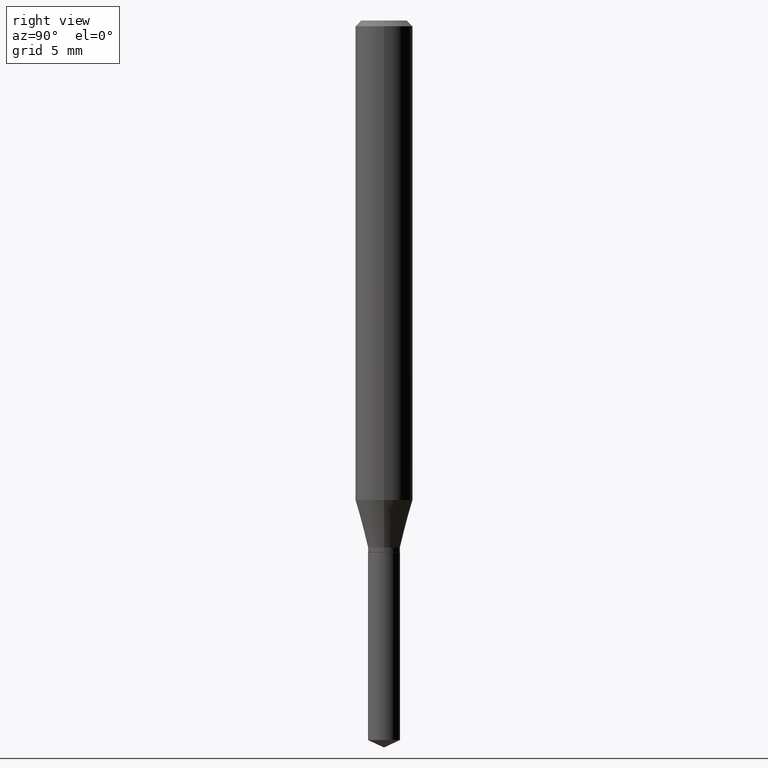
[diagram: clean part render]
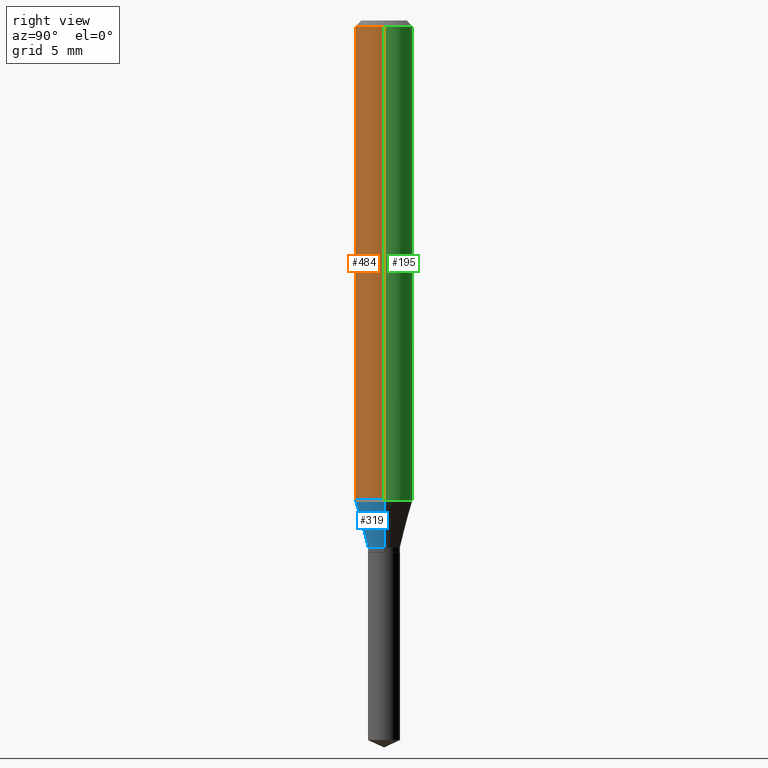
[diagram: same view with three faces highlighted in distinct colors, each labeled with its STEP entity id]
A machine part, right view with three faces highlighted in distinct colors.
Their STEP definitions:

[orange] entity #484 — the highlighted cylindrical surface (edge-blend (fillet) strip) has radius 1.4999 mm, axis along (-0, 0, 1).
#2 = DIRECTION ( 'NONE',  ( 1.000000000000000000, -6.982962677686266711E-15, 4.876176775795935793E-29 ) ) ;
#12 = CARTESIAN_POINT ( 'NONE',  ( -0.05904999999999999832, -1.323773988566005771E-15, -0.01181000000000007218 ) ) ;
#44 = DIRECTION ( 'NONE',  ( 1.000000000000000000, -6.982962677686266711E-15, 0.000000000000000000 ) ) ;
#53 = FACE_OUTER_BOUND ( 'NONE', #250, .T. ) ;
#54 = CARTESIAN_POINT ( 'NONE',  ( 2.413238184763595651E-29, -3.445464553452954771E-15, -0.9868202688416950474 ) ) ;
#67 = EDGE_CURVE ( 'NONE', #205, #290, #233, .T. ) ;
#77 = DIRECTION ( 'NONE',  ( -2.445468806185136597E-29, 3.491481338843145583E-15, 1.000000000000000000 ) ) ;
#79 = DIRECTION ( 'NONE',  ( -2.445468806185136877E-29, 3.491481338843145188E-15, 1.000000000000000000 ) ) ;
#101 = ORIENTED_EDGE ( 'NONE', *, *, #67, .T. ) ;
#107 = VECTOR ( 'NONE', #79, 39.37007874015748143 ) ;
#116 = LINE ( 'NONE', #221, #107 ) ;
#123 = CARTESIAN_POINT ( 'NONE',  ( 0.000000000000000000, 0.000000000000000000, 0.000000000000000000 ) ) ;
#127 = CIRCLE ( 'NONE', #414, 0.05904999999999999832 ) ;
#129 = CARTESIAN_POINT ( 'NONE',  ( 2.888098660104664204E-31, -4.123439461173780263E-17, -0.01181000000000007218 ) ) ;
#156 = DIRECTION ( 'NONE',  ( -2.445468806185136877E-29, 3.491481338843145188E-15, 1.000000000000000000 ) ) ;
#191 = AXIS2_PLACEMENT_3D ( 'NONE', #54, #355, #349 ) ;
#205 = VERTEX_POINT ( 'NONE', #389 ) ;
#221 = CARTESIAN_POINT ( 'NONE',  ( -0.05905000000000006077, 4.195754854663395916E-16, -2.904631170795524694E-30 ) ) ;
#233 = LINE ( 'NONE', #434, #361 ) ;
#248 = EDGE_CURVE ( 'NONE', #258, #373, #116, .T. ) ;
#250 = EDGE_LOOP ( 'NONE', ( #481, #380, #101, #382 ) ) ;
#258 = VERTEX_POINT ( 'NONE', #259 ) ;
#259 = CARTESIAN_POINT ( 'NONE',  ( -0.05905000000000011628, -3.025889067986614883E-15, -0.9868202688416950474 ) ) ;
#290 = VERTEX_POINT ( 'NONE', #372 ) ;
#293 = CIRCLE ( 'NONE', #191, 0.05905000000000011628 ) ;
#343 = CYLINDRICAL_SURFACE ( 'NONE', #384, 0.05905000000000006077 ) ;
#349 = DIRECTION ( 'NONE',  ( 1.000000000000000000, -6.982962677686266711E-15, 0.000000000000000000 ) ) ;
#355 = DIRECTION ( 'NONE',  ( -2.445468806185136597E-29, 3.491481338843145583E-15, 1.000000000000000000 ) ) ;
#361 = VECTOR ( 'NONE', #156, 39.37007874015748143 ) ;
#372 = CARTESIAN_POINT ( 'NONE',  ( 0.05904999999999999832, -4.535783407291118600E-16, -0.01181000000000007218 ) ) ;
#373 = VERTEX_POINT ( 'NONE', #12 ) ;
#380 = ORIENTED_EDGE ( 'NONE', *, *, #408, .T. ) ;
#382 = ORIENTED_EDGE ( 'NONE', *, *, #430, .F. ) ;
#384 = AXIS2_PLACEMENT_3D ( 'NONE', #123, #77, #2 ) ;
#389 = CARTESIAN_POINT ( 'NONE',  ( 0.05905000000000011628, -3.857808499570329297E-15, -0.9868202688416950474 ) ) ;
#401 = DIRECTION ( 'NONE',  ( -2.445468806185136597E-29, 3.491481338843145583E-15, 1.000000000000000000 ) ) ;
#408 = EDGE_CURVE ( 'NONE', #258, #205, #293, .T. ) ;
#414 = AXIS2_PLACEMENT_3D ( 'NONE', #129, #401, #44 ) ;
#430 = EDGE_CURVE ( 'NONE', #373, #290, #127, .T. ) ;
#434 = CARTESIAN_POINT ( 'NONE',  ( 0.05905000000000006077, -4.123439461173744764E-16, 2.879382386107503023E-30 ) ) ;
#481 = ORIENTED_EDGE ( 'NONE', *, *, #248, .F. ) ;
#484 = ADVANCED_FACE ( 'NONE', ( #53 ), #343, .T. ) ;

[blue] entity #319 — the highlighted conical surface has half-angle 15 deg.
#54 = CARTESIAN_POINT ( 'NONE',  ( 2.413238184763595651E-29, -3.445464553452954771E-15, -0.9868202688416950474 ) ) ;
#56 = AXIS2_PLACEMENT_3D ( 'NONE', #125, #354, #87 ) ;
#64 = ORIENTED_EDGE ( 'NONE', *, *, #408, .F. ) ;
#71 = DIRECTION ( 'NONE',  ( -0.2588190451025211836, 5.211531920934547886E-15, 0.9659258262890679791 ) ) ;
#87 = DIRECTION ( 'NONE',  ( 1.000000000000000000, -6.982962677686273021E-15, 0.000000000000000000 ) ) ;
#91 = DIRECTION ( 'NONE',  ( 1.000000000000000000, -6.982962677686273021E-15, 0.000000000000000000 ) ) ;
#102 = VERTEX_POINT ( 'NONE', #121 ) ;
#114 = AXIS2_PLACEMENT_3D ( 'NONE', #317, #437, #91 ) ;
#121 = CARTESIAN_POINT ( 'NONE',  ( -0.03284999999999999726, -3.569857333704645111E-15, -1.084600000000000009 ) ) ;
#125 = CARTESIAN_POINT ( 'NONE',  ( 2.652355467188399034E-29, -3.786860660109275425E-15, -1.084600000000000009 ) ) ;
#132 = VECTOR ( 'NONE', #71, 39.37007874015748854 ) ;
#157 = EDGE_CURVE ( 'NONE', #294, #205, #275, .T. ) ;
#191 = AXIS2_PLACEMENT_3D ( 'NONE', #54, #355, #349 ) ;
#205 = VERTEX_POINT ( 'NONE', #389 ) ;
#206 = EDGE_CURVE ( 'NONE', #102, #294, #253, .T. ) ;
#223 = ORIENTED_EDGE ( 'NONE', *, *, #206, .T. ) ;
#226 = EDGE_CURVE ( 'NONE', #102, #258, #466, .T. ) ;
#253 = CIRCLE ( 'NONE', #56, 0.03284999999999999726 ) ;
#257 = EDGE_LOOP ( 'NONE', ( #335, #223, #367, #64 ) ) ;
#258 = VERTEX_POINT ( 'NONE', #259 ) ;
#259 = CARTESIAN_POINT ( 'NONE',  ( -0.05905000000000011628, -3.025889067986614883E-15, -0.9868202688416950474 ) ) ;
#275 = LINE ( 'NONE', #386, #288 ) ;
#288 = VECTOR ( 'NONE', #429, 39.37007874015748854 ) ;
#293 = CIRCLE ( 'NONE', #191, 0.05905000000000011628 ) ;
#294 = VERTEX_POINT ( 'NONE', #412 ) ;
#317 = CARTESIAN_POINT ( 'NONE',  ( 2.652355467188399034E-29, -3.786860660109275425E-15, -1.084600000000000009 ) ) ;
#319 = ADVANCED_FACE ( 'NONE', ( #395 ), #402, .T. ) ;
#335 = ORIENTED_EDGE ( 'NONE', *, *, #226, .F. ) ;
#349 = DIRECTION ( 'NONE',  ( 1.000000000000000000, -6.982962677686266711E-15, 0.000000000000000000 ) ) ;
#354 = DIRECTION ( 'NONE',  ( -2.445468806185136597E-29, 3.491481338843145583E-15, 1.000000000000000000 ) ) ;
#355 = DIRECTION ( 'NONE',  ( -2.445468806185136597E-29, 3.491481338843145583E-15, 1.000000000000000000 ) ) ;
#367 = ORIENTED_EDGE ( 'NONE', *, *, #157, .T. ) ;
#386 = CARTESIAN_POINT ( 'NONE',  ( 0.03284999999999999726, -4.016250984071269671E-15, -1.084600000000000009 ) ) ;
#387 = CARTESIAN_POINT ( 'NONE',  ( -0.03284999999999999726, -3.553447371412082977E-15, -1.084600000000000009 ) ) ;
#389 = CARTESIAN_POINT ( 'NONE',  ( 0.05905000000000011628, -3.857808499570329297E-15, -0.9868202688416950474 ) ) ;
#395 = FACE_OUTER_BOUND ( 'NONE', #257, .T. ) ;
#402 = CONICAL_SURFACE ( 'NONE', #114, 0.03284999999999999726, 0.2617993877991499074 ) ;
#408 = EDGE_CURVE ( 'NONE', #258, #205, #293, .T. ) ;
#412 = CARTESIAN_POINT ( 'NONE',  ( 0.03284999999999999726, -4.016250984071269671E-15, -1.084600000000000009 ) ) ;
#429 = DIRECTION ( 'NONE',  ( 0.2588190451025211836, 1.565188264969622559E-15, 0.9659258262890679791 ) ) ;
#437 = DIRECTION ( 'NONE',  ( -2.445468806185136597E-29, 3.491481338843145583E-15, 1.000000000000000000 ) ) ;
#466 = LINE ( 'NONE', #387, #132 ) ;

[green] entity #195 — the highlighted cylindrical surface (edge-blend (fillet) strip) has radius 1.4999 mm, axis along (-0, 0, 1).
#12 = CARTESIAN_POINT ( 'NONE',  ( -0.05904999999999999832, -1.323773988566005771E-15, -0.01181000000000007218 ) ) ;
#27 = CARTESIAN_POINT ( 'NONE',  ( 2.888098660104664204E-31, -4.123439461173780263E-17, -0.01181000000000007218 ) ) ;
#50 = DIRECTION ( 'NONE',  ( -2.445468806185136597E-29, 3.491481338843145583E-15, 1.000000000000000000 ) ) ;
#67 = EDGE_CURVE ( 'NONE', #205, #290, #233, .T. ) ;
#79 = DIRECTION ( 'NONE',  ( -2.445468806185136877E-29, 3.491481338843145188E-15, 1.000000000000000000 ) ) ;
#84 = CYLINDRICAL_SURFACE ( 'NONE', #473, 0.05905000000000006077 ) ;
#107 = VECTOR ( 'NONE', #79, 39.37007874015748143 ) ;
#116 = LINE ( 'NONE', #221, #107 ) ;
#122 = CARTESIAN_POINT ( 'NONE',  ( 2.413238184763595651E-29, -3.445464553452954771E-15, -0.9868202688416950474 ) ) ;
#136 = DIRECTION ( 'NONE',  ( 1.000000000000000000, -6.982962677686266711E-15, 0.000000000000000000 ) ) ;
#138 = CIRCLE ( 'NONE', #211, 0.05904999999999999832 ) ;
#145 = CIRCLE ( 'NONE', #464, 0.05905000000000011628 ) ;
#156 = DIRECTION ( 'NONE',  ( -2.445468806185136877E-29, 3.491481338843145188E-15, 1.000000000000000000 ) ) ;
#171 = DIRECTION ( 'NONE',  ( -2.445468806185136597E-29, 3.491481338843145583E-15, 1.000000000000000000 ) ) ;
#178 = ORIENTED_EDGE ( 'NONE', *, *, #297, .F. ) ;
#195 = ADVANCED_FACE ( 'NONE', ( #472 ), #84, .T. ) ;
#205 = VERTEX_POINT ( 'NONE', #389 ) ;
#211 = AXIS2_PLACEMENT_3D ( 'NONE', #27, #171, #136 ) ;
#221 = CARTESIAN_POINT ( 'NONE',  ( -0.05905000000000006077, 4.195754854663395916E-16, -2.904631170795524694E-30 ) ) ;
#222 = ORIENTED_EDGE ( 'NONE', *, *, #248, .T. ) ;
#233 = LINE ( 'NONE', #434, #361 ) ;
#248 = EDGE_CURVE ( 'NONE', #258, #373, #116, .T. ) ;
#258 = VERTEX_POINT ( 'NONE', #259 ) ;
#259 = CARTESIAN_POINT ( 'NONE',  ( -0.05905000000000011628, -3.025889067986614883E-15, -0.9868202688416950474 ) ) ;
#290 = VERTEX_POINT ( 'NONE', #372 ) ;
#297 = EDGE_CURVE ( 'NONE', #290, #373, #138, .T. ) ;
#300 = EDGE_LOOP ( 'NONE', ( #445, #222, #178, #377 ) ) ;
#336 = EDGE_CURVE ( 'NONE', #205, #258, #145, .T. ) ;
#353 = DIRECTION ( 'NONE',  ( -2.445468806185136597E-29, 3.491481338843145583E-15, 1.000000000000000000 ) ) ;
#361 = VECTOR ( 'NONE', #156, 39.37007874015748143 ) ;
#372 = CARTESIAN_POINT ( 'NONE',  ( 0.05904999999999999832, -4.535783407291118600E-16, -0.01181000000000007218 ) ) ;
#373 = VERTEX_POINT ( 'NONE', #12 ) ;
#377 = ORIENTED_EDGE ( 'NONE', *, *, #67, .F. ) ;
#389 = CARTESIAN_POINT ( 'NONE',  ( 0.05905000000000011628, -3.857808499570329297E-15, -0.9868202688416950474 ) ) ;
#396 = CARTESIAN_POINT ( 'NONE',  ( 0.000000000000000000, 0.000000000000000000, 0.000000000000000000 ) ) ;
#427 = DIRECTION ( 'NONE',  ( 1.000000000000000000, -6.982962677686266711E-15, 0.000000000000000000 ) ) ;
#434 = CARTESIAN_POINT ( 'NONE',  ( 0.05905000000000006077, -4.123439461173744764E-16, 2.879382386107503023E-30 ) ) ;
#445 = ORIENTED_EDGE ( 'NONE', *, *, #336, .T. ) ;
#463 = DIRECTION ( 'NONE',  ( 1.000000000000000000, -6.982962677686266711E-15, 4.876176775795935793E-29 ) ) ;
#464 = AXIS2_PLACEMENT_3D ( 'NONE', #122, #353, #427 ) ;
#472 = FACE_OUTER_BOUND ( 'NONE', #300, .T. ) ;
#473 = AXIS2_PLACEMENT_3D ( 'NONE', #396, #50, #463 ) ;